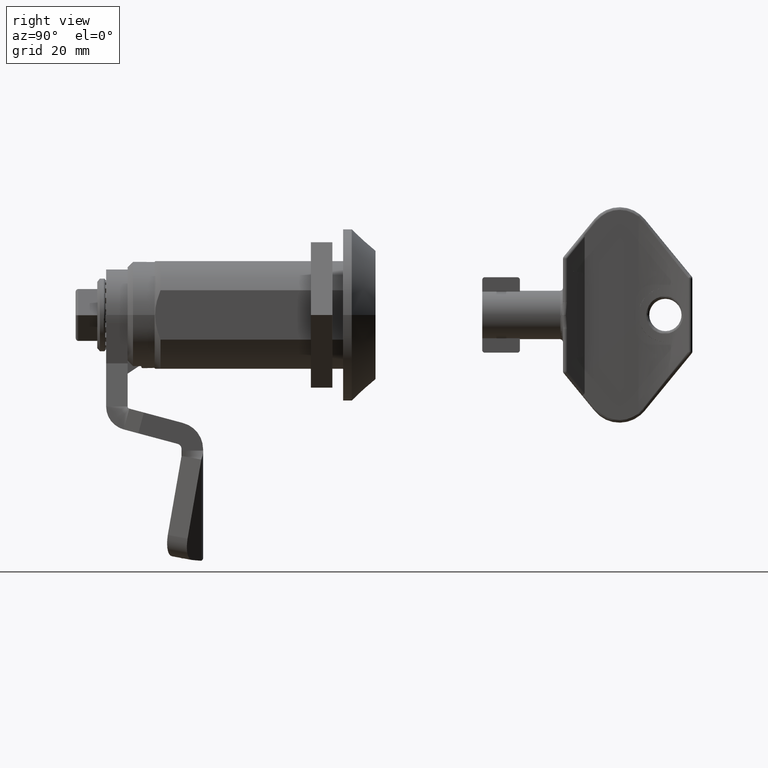
[diagram: clean part render]
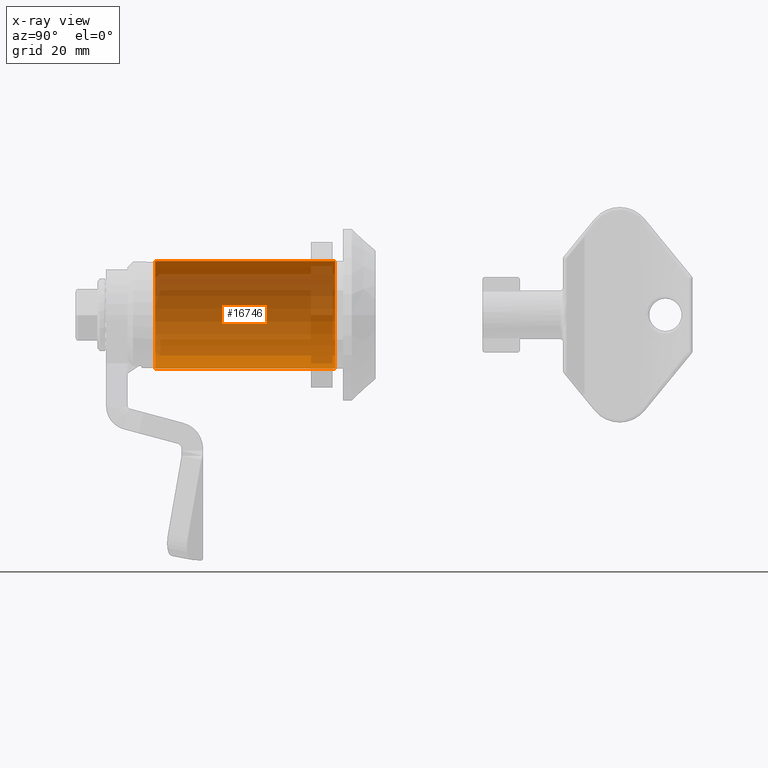
[diagram: x-ray — body ghosted, one internal face saturated and labeled with its STEP entity id]
A machine part, right view, then the same camera in x-ray: the body is ghosted and one INTERNAL B-rep face — a face not visible from any outside direction — is saturated and labeled: STEP entity #16746.
In plain terms, the highlighted cylindrical surface (partial cylindrical patch) has radius 10 mm, axis along (0, 1, 0).
Its self-contained STEP definition (entity closure, byte-faithful):
#4 = EDGE_CURVE ( 'NONE', #8874, #6603, #4081, .T. ) ;
#569 = CARTESIAN_POINT ( 'NONE',  ( 9.993832724293660874, 14.74999999999998401, 11.49999999999999645 ) ) ;
#837 = DIRECTION ( 'NONE',  ( -3.317293887944518980E-16, -1.000000000000000000, -1.074605417745128157E-16 ) ) ;
#1616 = ORIENTED_EDGE ( 'NONE', *, *, #24383, .T. ) ;
#1663 = CIRCLE ( 'NONE', #7674, 10.00000000000000000 ) ;
#2220 = CARTESIAN_POINT ( 'NONE',  ( 9.993832724293655545, 14.74999999999998401, 11.49999999999999645 ) ) ;
#4081 = CIRCLE ( 'NONE', #24711, 10.00000000000000000 ) ;
#4326 = ORIENTED_EDGE ( 'NONE', *, *, #4, .F. ) ;
#4787 = EDGE_CURVE ( 'NONE', #25330, #15823, #1663, .T. ) ;
#4820 = FACE_OUTER_BOUND ( 'NONE', #21346, .T. ) ;
#5728 = EDGE_CURVE ( 'NONE', #25330, #8874, #6416, .T. ) ;
#6416 = LINE ( 'NONE', #2220, #19191 ) ;
#6603 = VERTEX_POINT ( 'NONE', #16952 ) ;
#6834 = DIRECTION ( 'NONE',  ( 3.317293887944518980E-16, 1.000000000000000000, 1.074605417745128157E-16 ) ) ;
#7674 = AXIS2_PLACEMENT_3D ( 'NONE', #17522, #11065, #19283 ) ;
#8874 = VERTEX_POINT ( 'NONE', #9503 ) ;
#9040 = DIRECTION ( 'NONE',  ( -3.469446951953614189E-16, 0.0000000000000000000, 1.000000000000000000 ) ) ;
#9503 = CARTESIAN_POINT ( 'NONE',  ( 9.993832724293666203, 48.14999999999998437, 11.50000000000000355 ) ) ;
#9688 = DIRECTION ( 'NONE',  ( 3.317293887944518980E-16, 1.000000000000000000, 1.074605417745128157E-16 ) ) ;
#10150 = CARTESIAN_POINT ( 'NONE',  ( 9.993832724293669756, 14.74999999999998757, -8.500000000000003553 ) ) ;
#10563 = DIRECTION ( 'NONE',  ( 3.317293887944518980E-16, 1.000000000000000000, 1.074605417745128157E-16 ) ) ;
#11065 = DIRECTION ( 'NONE',  ( -3.317293887944518980E-16, -1.000000000000000000, -1.941967155733531827E-16 ) ) ;
#11179 = CARTESIAN_POINT ( 'NONE',  ( 9.993832724293669756, 48.14999999999998437, 1.500000000000002887 ) ) ;
#14620 = ORIENTED_EDGE ( 'NONE', *, *, #4787, .T. ) ;
#14659 = ORIENTED_EDGE ( 'NONE', *, *, #5728, .F. ) ;
#15025 = DIRECTION ( 'NONE',  ( -3.469446951953614189E-16, -1.734723475976807094E-16, 1.000000000000000000 ) ) ;
#15823 = VERTEX_POINT ( 'NONE', #10150 ) ;
#16746 = ADVANCED_FACE ( 'NONE', ( #4820 ), #17041, .F. ) ;
#16952 = CARTESIAN_POINT ( 'NONE',  ( 9.993832724293669756, 48.14999999999998437, -8.499999999999996447 ) ) ;
#17041 = CYLINDRICAL_SURFACE ( 'NONE', #21349, 10.00000000000000000 ) ;
#17522 = CARTESIAN_POINT ( 'NONE',  ( 9.993832724293659098, 14.74999999999998579, 1.499999999999996447 ) ) ;
#19191 = VECTOR ( 'NONE', #10563, 1000.000000000000000 ) ;
#19283 = DIRECTION ( 'NONE',  ( 1.000000000000000000, -3.469446951953614189E-16, 3.252606517456513302E-16 ) ) ;
#20324 = CARTESIAN_POINT ( 'NONE',  ( 9.993832724293664427, 14.74999999999998757, -8.500000000000003553 ) ) ;
#21346 = EDGE_LOOP ( 'NONE', ( #14620, #1616, #4326, #14659 ) ) ;
#21349 = AXIS2_PLACEMENT_3D ( 'NONE', #23119, #6834, #15025 ) ;
#23119 = CARTESIAN_POINT ( 'NONE',  ( 9.993832724293659098, 14.74999999999998579, 1.499999999999996447 ) ) ;
#23779 = VECTOR ( 'NONE', #9688, 1000.000000000000000 ) ;
#24238 = LINE ( 'NONE', #20324, #23779 ) ;
#24383 = EDGE_CURVE ( 'NONE', #15823, #6603, #24238, .T. ) ;
#24711 = AXIS2_PLACEMENT_3D ( 'NONE', #11179, #837, #9040 ) ;
#25330 = VERTEX_POINT ( 'NONE', #569 ) ;